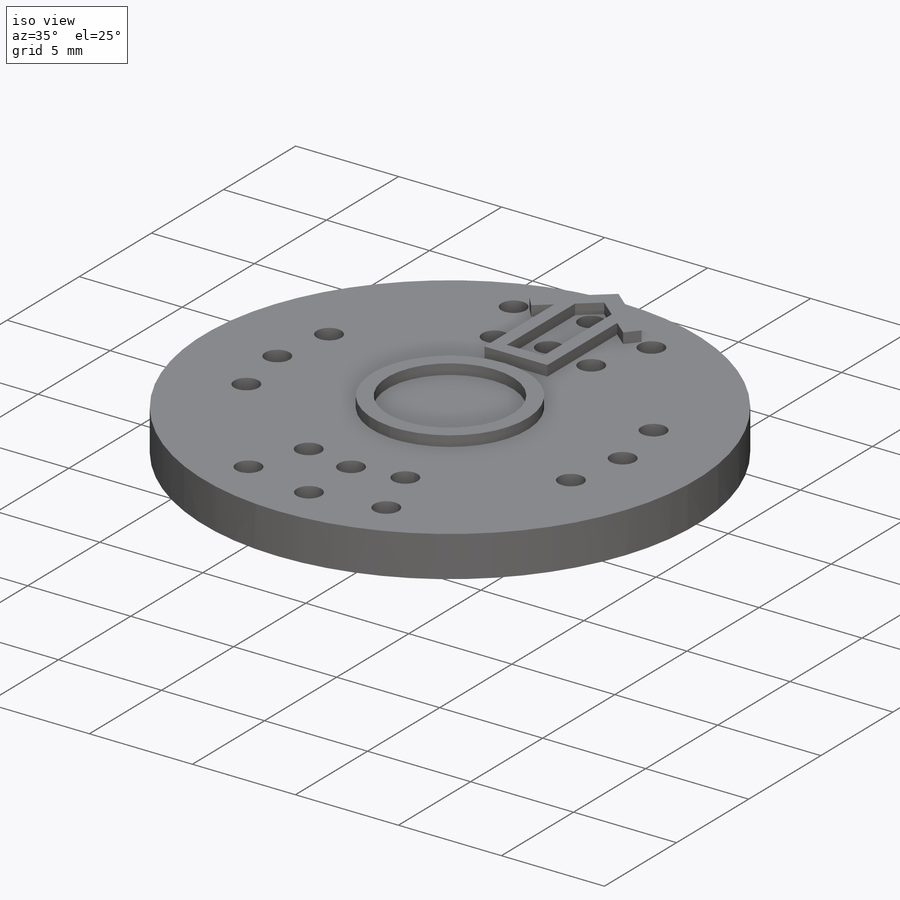
[diagram: iso view]
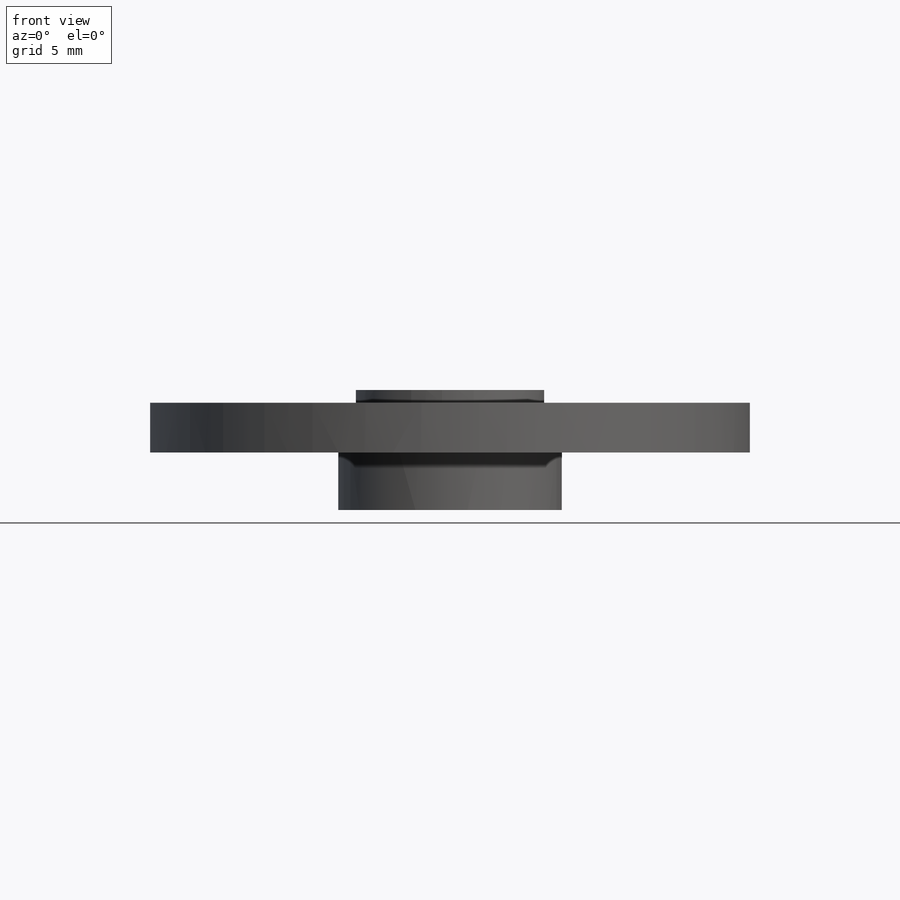
[diagram: front view]
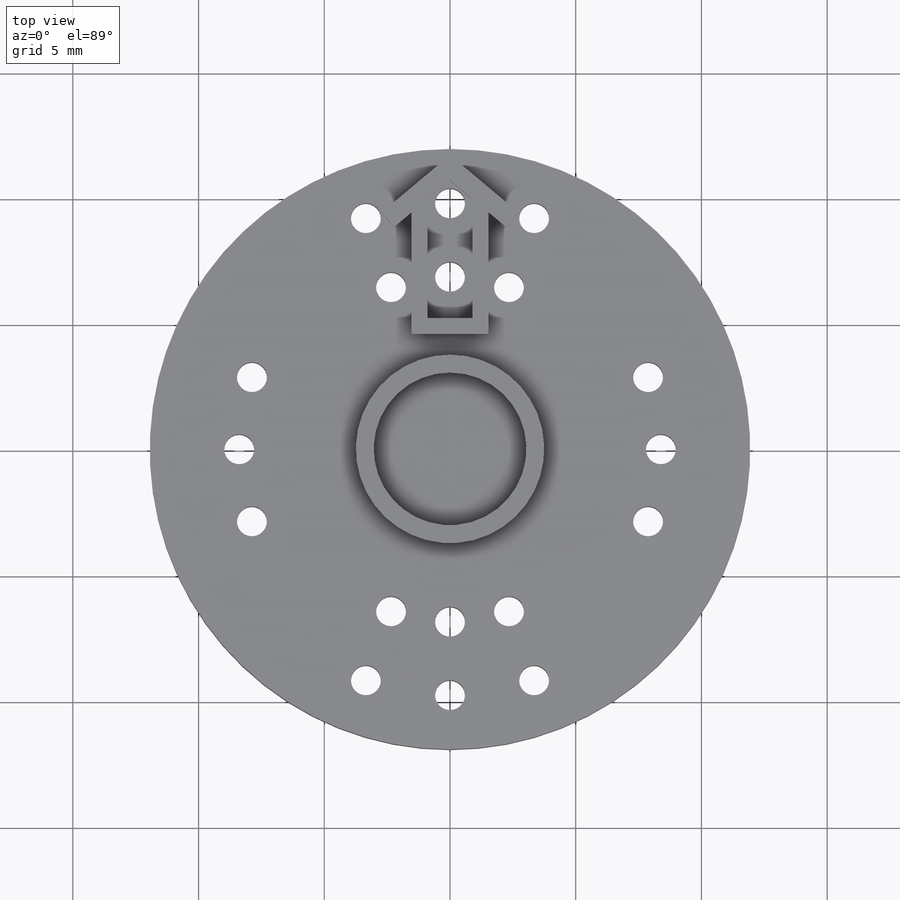
[diagram: top view]
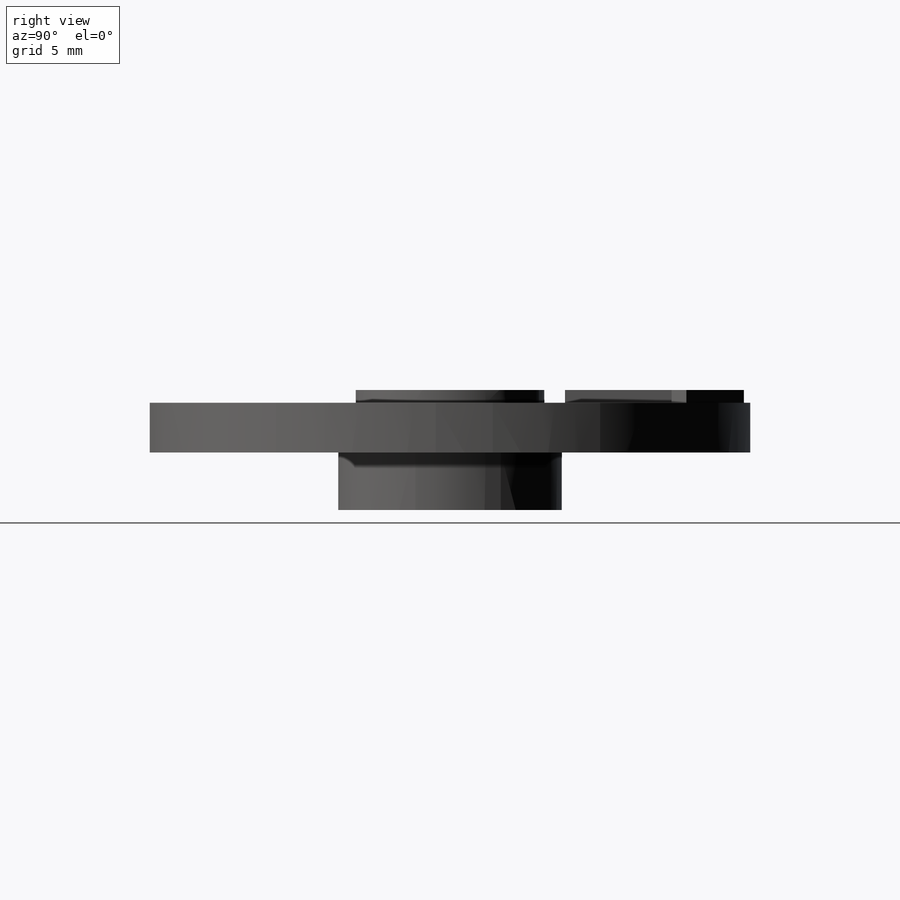
[diagram: right view]
SOLIDWORKS PART (.sldprt)
format: sldprt  version: not decoded by parser v0  size: 316,928 bytes
history: native  units: mm
features: sketch x6, extrude x4, material x1, hole x1, pattern_circular x1 (+17 scaffold rows collapsed)
feature tree (30):
  scaffold x17  (default folders/planes/origin — collapsed)
  material  "Material <not specified>"
  sketch  "Sketch1"  dims[D1=23.876mm]
  extrude  "Extrude1"  Depth=1.9812mm
  sketch  "Sketch2"  dims[D1=8.89mm]
  extrude  "Extrude2"  Depth=2.286mm
  hole  "3/64 (0.04688) Diameter Hole1"  Diameter=1.190752mm Depth=4.2672mm
  sketch  "3DSketch1"  dims[c1.D1=13.716mm c1.D3=19.558mm c1.D5=16.764mm c1.D2=~38.749716mm c2.D2=90.0deg c3.D2=~10.433416mm c4.D2=20.0deg c4.D4=~6.68923mm]
  sketch  "Sketch4"  dims[hole-wizard template sketch: 59 standard entries collapsed; hole parameters kept: c18.Thru Hole Dia.=~1.190752mm c18.Thru Hole Depth=4.2672mm]
  pattern_circular  "CirPattern1"  Count=2 Angle=360deg
  sketch  "Sketch6"  dims[c1.D1=~5.899403mm c1.D2=7.493mm c2.D1=0.7112mm]
  extrude  "Extrude4"  Depth=0.508mm
  sketch  "Sketch5"  dims[c1.D1=~1.411064mm c2.D1=100.0deg c2.D2=3.556mm c2.D3=0.762mm c2.D4=0.635mm c2.D5=11.684mm c2.D6=4.572mm c2.D7=0.635mm c2.D8=3.048mm]
  extrude  "Extrude3"  Depth=0.508mm
decode coverage: 12 of 12 modeling features carry decoded parameters
note: ~ marks probable driven/reference dimensions
note: suppression state not decoded; provenance and decode notes live in map.json
